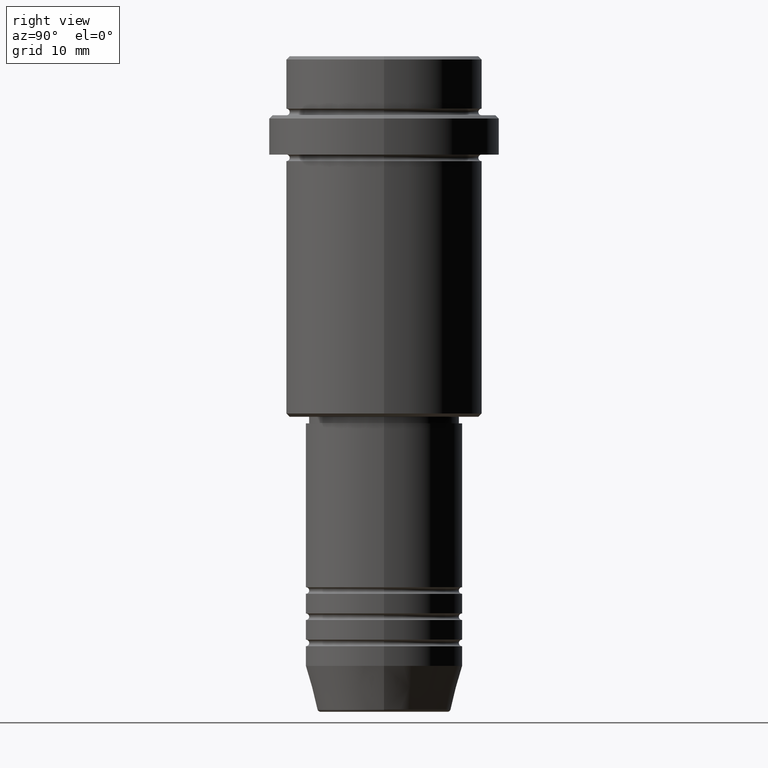
[diagram: clean part render]
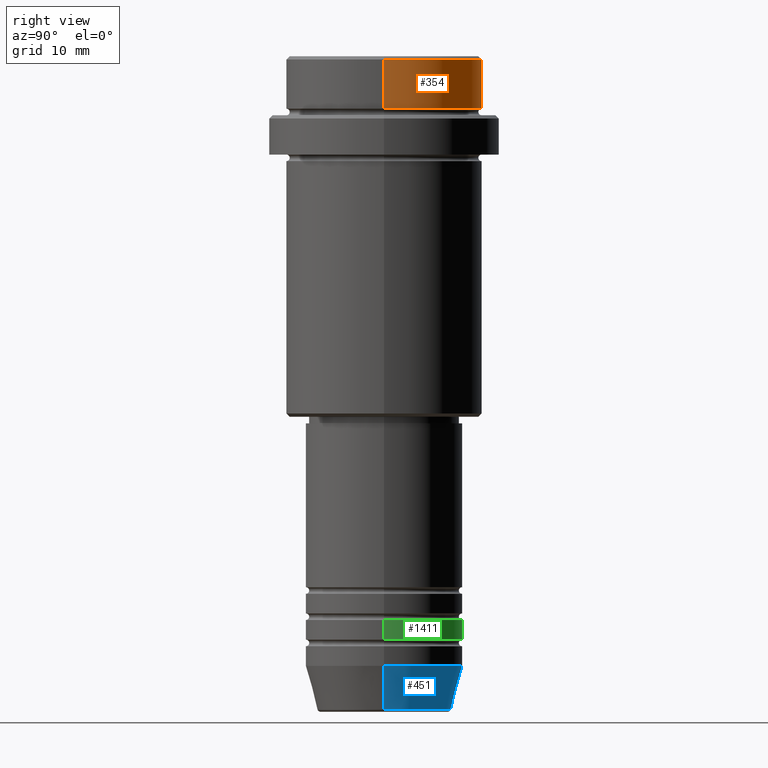
[diagram: same view with three faces highlighted in distinct colors, each labeled with its STEP entity id]
A machine part, right view with three faces highlighted in distinct colors.
Their STEP definitions:

[orange] entity #354 — the highlighted cylindrical surface (partial cylindrical patch) has radius 15 mm, axis along (-0, -0, 1).
#56 = AXIS2_PLACEMENT_3D ( 'NONE', #600, #1028, #63 ) ;
#63 = DIRECTION ( 'NONE',  ( 1.000000000000000000, 0.000000000000000000, 0.000000000000000000 ) ) ;
#88 = CARTESIAN_POINT ( 'NONE',  ( 0.000000000000000000, 0.000000000000000000, 0.000000000000000000 ) ) ;
#161 = EDGE_CURVE ( 'NONE', #1307, #629, #377, .T. ) ;
#171 = VERTEX_POINT ( 'NONE', #1388 ) ;
#201 = DIRECTION ( 'NONE',  ( 1.000000000000000000, 0.000000000000000000, 0.000000000000000000 ) ) ;
#259 = EDGE_LOOP ( 'NONE', ( #1254, #1409, #501, #1011 ) ) ;
#261 = VERTEX_POINT ( 'NONE', #1369 ) ;
#305 = DIRECTION ( 'NONE',  ( -0.000000000000000000, -0.000000000000000000, 1.000000000000000000 ) ) ;
#354 = ADVANCED_FACE ( 'NONE', ( #627 ), #522, .T. ) ;
#377 = LINE ( 'NONE', #496, #754 ) ;
#389 = CIRCLE ( 'NONE', #56, 15.00000000000000000 ) ;
#401 = CARTESIAN_POINT ( 'NONE',  ( 0.000000000000000000, 0.000000000000000000, -7.999999999999998224 ) ) ;
#496 = CARTESIAN_POINT ( 'NONE',  ( 15.00000000000000000, 0.000000000000000000, 0.000000000000000000 ) ) ;
#501 = ORIENTED_EDGE ( 'NONE', *, *, #1100, .T. ) ;
#505 = DIRECTION ( 'NONE',  ( -0.000000000000000000, -0.000000000000000000, 1.000000000000000000 ) ) ;
#522 = CYLINDRICAL_SURFACE ( 'NONE', #840, 15.00000000000000000 ) ;
#536 = DIRECTION ( 'NONE',  ( -0.000000000000000000, -0.000000000000000000, 1.000000000000000000 ) ) ;
#541 = DIRECTION ( 'NONE',  ( -0.000000000000000000, -0.000000000000000000, 1.000000000000000000 ) ) ;
#598 = EDGE_CURVE ( 'NONE', #261, #171, #1190, .T. ) ;
#600 = CARTESIAN_POINT ( 'NONE',  ( 0.000000000000000000, 0.000000000000000000, -0.5000000000000108802 ) ) ;
#609 = EDGE_CURVE ( 'NONE', #1307, #261, #637, .T. ) ;
#627 = FACE_OUTER_BOUND ( 'NONE', #259, .T. ) ;
#629 = VERTEX_POINT ( 'NONE', #657 ) ;
#637 = CIRCLE ( 'NONE', #825, 15.00000000000000000 ) ;
#657 = CARTESIAN_POINT ( 'NONE',  ( 15.00000000000000000, 0.000000000000000000, -0.5000000000000108802 ) ) ;
#754 = VECTOR ( 'NONE', #505, 1000.000000000000000 ) ;
#755 = VECTOR ( 'NONE', #536, 1000.000000000000000 ) ;
#825 = AXIS2_PLACEMENT_3D ( 'NONE', #401, #541, #1349 ) ;
#840 = AXIS2_PLACEMENT_3D ( 'NONE', #88, #305, #201 ) ;
#1011 = ORIENTED_EDGE ( 'NONE', *, *, #161, .F. ) ;
#1028 = DIRECTION ( 'NONE',  ( 0.000000000000000000, 0.000000000000000000, -1.000000000000000000 ) ) ;
#1089 = CARTESIAN_POINT ( 'NONE',  ( -15.00000000000000000, 1.836970198721029589E-15, 0.000000000000000000 ) ) ;
#1100 = EDGE_CURVE ( 'NONE', #171, #629, #389, .T. ) ;
#1143 = CARTESIAN_POINT ( 'NONE',  ( 15.00000000000000000, 0.000000000000000000, -7.999999999999998224 ) ) ;
#1190 = LINE ( 'NONE', #1089, #755 ) ;
#1254 = ORIENTED_EDGE ( 'NONE', *, *, #609, .T. ) ;
#1307 = VERTEX_POINT ( 'NONE', #1143 ) ;
#1349 = DIRECTION ( 'NONE',  ( 1.000000000000000000, 0.000000000000000000, 0.000000000000000000 ) ) ;
#1369 = CARTESIAN_POINT ( 'NONE',  ( -15.00000000000000000, 1.836970198721029589E-15, -7.999999999999998224 ) ) ;
#1388 = CARTESIAN_POINT ( 'NONE',  ( -15.00000000000000000, 1.836970198721029589E-15, -0.5000000000000108802 ) ) ;
#1409 = ORIENTED_EDGE ( 'NONE', *, *, #598, .T. ) ;

[blue] entity #451 — the highlighted conical surface has half-angle 15 deg.
#22 = ORIENTED_EDGE ( 'NONE', *, *, #301, .T. ) ;
#28 = CARTESIAN_POINT ( 'NONE',  ( 0.000000000000000000, 0.000000000000000000, -99.62940952255127058 ) ) ;
#93 = CIRCLE ( 'NONE', #1002, 12.00000000000000000 ) ;
#120 = DIRECTION ( 'NONE',  ( 1.000000000000000000, 0.000000000000000000, 0.000000000000000000 ) ) ;
#123 = CARTESIAN_POINT ( 'NONE',  ( -10.22365507213718949, 1.360806402472382547E-15, -99.62940952255127058 ) ) ;
#135 = DIRECTION ( 'NONE',  ( 1.000000000000000000, 0.000000000000000000, 0.000000000000000000 ) ) ;
#240 = CARTESIAN_POINT ( 'NONE',  ( 0.000000000000000000, 0.000000000000000000, -93.00000000000000000 ) ) ;
#288 = AXIS2_PLACEMENT_3D ( 'NONE', #240, #1132, #135 ) ;
#299 = CARTESIAN_POINT ( 'NONE',  ( -12.00000000000000000, 1.469576158976823947E-15, -93.00000000000000000 ) ) ;
#301 = EDGE_CURVE ( 'NONE', #1207, #762, #1299, .T. ) ;
#443 = DIRECTION ( 'NONE',  ( -0.2588190451025213501, 3.169619151431772337E-17, 0.9659258262890680902 ) ) ;
#451 = ADVANCED_FACE ( 'NONE', ( #1236 ), #553, .T. ) ;
#463 = CIRCLE ( 'NONE', #1271, 10.22365507213718949 ) ;
#517 = CARTESIAN_POINT ( 'NONE',  ( 0.000000000000000000, 0.000000000000000000, -93.00000000000000000 ) ) ;
#553 = CONICAL_SURFACE ( 'NONE', #288, 12.00000000000000000, 0.2617993877991500740 ) ;
#582 = ORIENTED_EDGE ( 'NONE', *, *, #1385, .F. ) ;
#635 = VECTOR ( 'NONE', #443, 1000.000000000000000 ) ;
#642 = VERTEX_POINT ( 'NONE', #1333 ) ;
#665 = DIRECTION ( 'NONE',  ( -0.000000000000000000, -0.000000000000000000, 1.000000000000000000 ) ) ;
#672 = CARTESIAN_POINT ( 'NONE',  ( 10.22365507213718949, 0.000000000000000000, -99.62940952255127058 ) ) ;
#745 = DIRECTION ( 'NONE',  ( -0.000000000000000000, -0.000000000000000000, 1.000000000000000000 ) ) ;
#762 = VERTEX_POINT ( 'NONE', #1073 ) ;
#817 = DIRECTION ( 'NONE',  ( 0.2588190451025213501, 0.000000000000000000, 0.9659258262890680902 ) ) ;
#854 = EDGE_CURVE ( 'NONE', #1036, #1207, #463, .T. ) ;
#929 = LINE ( 'NONE', #1017, #1273 ) ;
#956 = DIRECTION ( 'NONE',  ( 1.000000000000000000, 0.000000000000000000, 0.000000000000000000 ) ) ;
#983 = EDGE_CURVE ( 'NONE', #642, #762, #93, .T. ) ;
#1002 = AXIS2_PLACEMENT_3D ( 'NONE', #517, #745, #956 ) ;
#1017 = CARTESIAN_POINT ( 'NONE',  ( 12.00000000000000000, 0.000000000000000000, -93.00000000000000000 ) ) ;
#1036 = VERTEX_POINT ( 'NONE', #672 ) ;
#1073 = CARTESIAN_POINT ( 'NONE',  ( -12.00000000000000000, 1.469576158976823947E-15, -93.00000000000000000 ) ) ;
#1123 = EDGE_LOOP ( 'NONE', ( #1290, #22, #1356, #582 ) ) ;
#1132 = DIRECTION ( 'NONE',  ( -0.000000000000000000, -0.000000000000000000, 1.000000000000000000 ) ) ;
#1207 = VERTEX_POINT ( 'NONE', #123 ) ;
#1236 = FACE_OUTER_BOUND ( 'NONE', #1123, .T. ) ;
#1271 = AXIS2_PLACEMENT_3D ( 'NONE', #28, #665, #120 ) ;
#1273 = VECTOR ( 'NONE', #817, 1000.000000000000000 ) ;
#1290 = ORIENTED_EDGE ( 'NONE', *, *, #854, .T. ) ;
#1299 = LINE ( 'NONE', #299, #635 ) ;
#1333 = CARTESIAN_POINT ( 'NONE',  ( 12.00000000000000000, 0.000000000000000000, -93.00000000000000000 ) ) ;
#1356 = ORIENTED_EDGE ( 'NONE', *, *, #983, .F. ) ;
#1385 = EDGE_CURVE ( 'NONE', #1036, #642, #929, .T. ) ;

[green] entity #1411 — the highlighted cylindrical surface (partial cylindrical patch) has radius 12 mm, axis along (-0, -0, 1).
#32 = DIRECTION ( 'NONE',  ( -0.000000000000000000, -0.000000000000000000, 1.000000000000000000 ) ) ;
#44 = CARTESIAN_POINT ( 'NONE',  ( 0.000000000000000000, 0.000000000000000000, -88.99999999999988631 ) ) ;
#77 = CARTESIAN_POINT ( 'NONE',  ( 12.00000000000000000, 0.000000000000000000, -88.99999999999988631 ) ) ;
#95 = AXIS2_PLACEMENT_3D ( 'NONE', #44, #1367, #487 ) ;
#143 = ORIENTED_EDGE ( 'NONE', *, *, #1370, .T. ) ;
#183 = VERTEX_POINT ( 'NONE', #77 ) ;
#251 = VECTOR ( 'NONE', #974, 1000.000000000000000 ) ;
#309 = DIRECTION ( 'NONE',  ( -0.000000000000000000, -0.000000000000000000, 1.000000000000000000 ) ) ;
#311 = CARTESIAN_POINT ( 'NONE',  ( 12.00000000000000000, 0.000000000000000000, -85.99999999999988631 ) ) ;
#318 = AXIS2_PLACEMENT_3D ( 'NONE', #549, #749, #965 ) ;
#381 = EDGE_CURVE ( 'NONE', #605, #428, #948, .T. ) ;
#406 = ORIENTED_EDGE ( 'NONE', *, *, #1174, .F. ) ;
#428 = VERTEX_POINT ( 'NONE', #567 ) ;
#487 = DIRECTION ( 'NONE',  ( 1.000000000000000000, 0.000000000000000000, 0.000000000000000000 ) ) ;
#539 = CARTESIAN_POINT ( 'NONE',  ( 12.00000000000000000, 0.000000000000000000, 0.000000000000000000 ) ) ;
#549 = CARTESIAN_POINT ( 'NONE',  ( 0.000000000000000000, 0.000000000000000000, -85.99999999999988631 ) ) ;
#567 = CARTESIAN_POINT ( 'NONE',  ( -12.00000000000000000, 1.469576158976823947E-15, -85.99999999999988631 ) ) ;
#580 = CARTESIAN_POINT ( 'NONE',  ( 0.000000000000000000, 0.000000000000000000, 0.000000000000000000 ) ) ;
#594 = VECTOR ( 'NONE', #309, 1000.000000000000000 ) ;
#605 = VERTEX_POINT ( 'NONE', #311 ) ;
#712 = DIRECTION ( 'NONE',  ( 1.000000000000000000, 0.000000000000000000, 0.000000000000000000 ) ) ;
#749 = DIRECTION ( 'NONE',  ( -0.000000000000000000, -0.000000000000000000, 1.000000000000000000 ) ) ;
#780 = AXIS2_PLACEMENT_3D ( 'NONE', #580, #32, #712 ) ;
#807 = EDGE_CURVE ( 'NONE', #1406, #428, #855, .T. ) ;
#820 = EDGE_LOOP ( 'NONE', ( #143, #1148, #1272, #406 ) ) ;
#855 = LINE ( 'NONE', #1310, #594 ) ;
#917 = FACE_OUTER_BOUND ( 'NONE', #820, .T. ) ;
#948 = CIRCLE ( 'NONE', #318, 12.00000000000000000 ) ;
#965 = DIRECTION ( 'NONE',  ( 1.000000000000000000, 0.000000000000000000, 0.000000000000000000 ) ) ;
#974 = DIRECTION ( 'NONE',  ( -0.000000000000000000, -0.000000000000000000, 1.000000000000000000 ) ) ;
#1027 = CARTESIAN_POINT ( 'NONE',  ( -12.00000000000000000, 1.469576158976823947E-15, -88.99999999999988631 ) ) ;
#1116 = CIRCLE ( 'NONE', #95, 12.00000000000000000 ) ;
#1148 = ORIENTED_EDGE ( 'NONE', *, *, #807, .T. ) ;
#1174 = EDGE_CURVE ( 'NONE', #183, #605, #1193, .T. ) ;
#1193 = LINE ( 'NONE', #539, #251 ) ;
#1259 = CYLINDRICAL_SURFACE ( 'NONE', #780, 12.00000000000000000 ) ;
#1272 = ORIENTED_EDGE ( 'NONE', *, *, #381, .F. ) ;
#1310 = CARTESIAN_POINT ( 'NONE',  ( -12.00000000000000000, 1.469576158976823947E-15, 0.000000000000000000 ) ) ;
#1367 = DIRECTION ( 'NONE',  ( -0.000000000000000000, -0.000000000000000000, 1.000000000000000000 ) ) ;
#1370 = EDGE_CURVE ( 'NONE', #183, #1406, #1116, .T. ) ;
#1406 = VERTEX_POINT ( 'NONE', #1027 ) ;
#1411 = ADVANCED_FACE ( 'NONE', ( #917 ), #1259, .T. ) ;